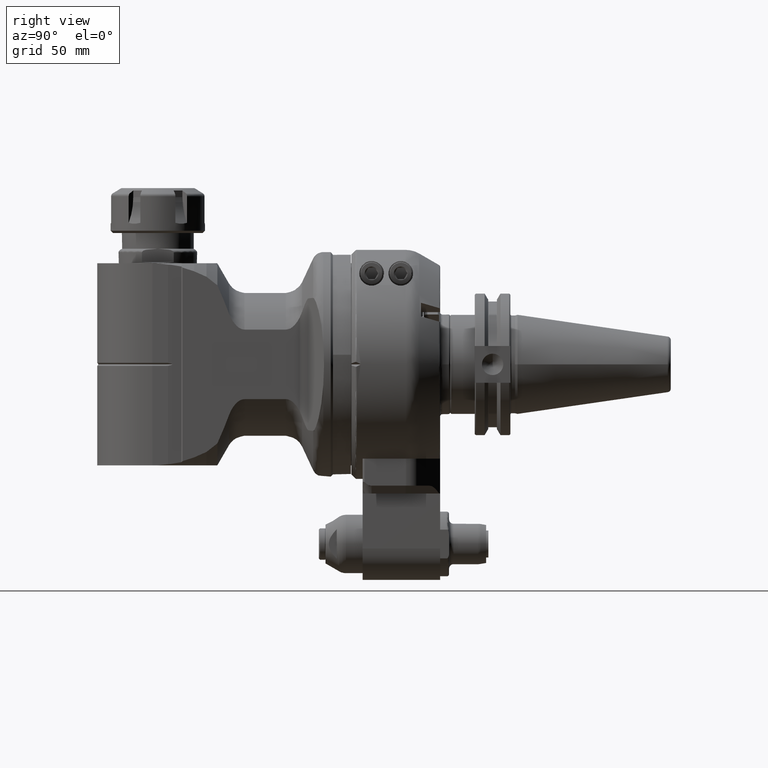
[diagram: clean part render]
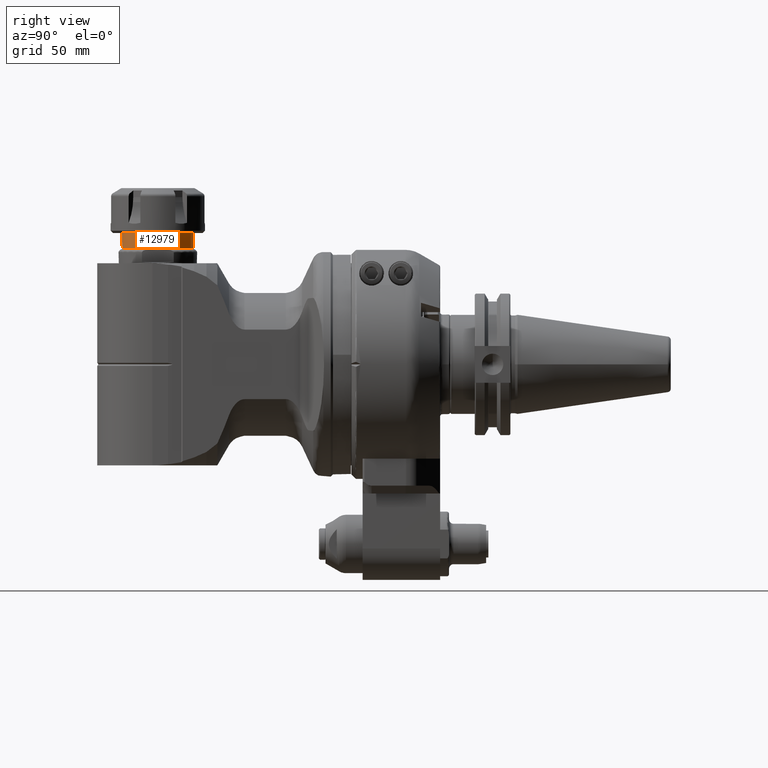
[diagram: same view with one face highlighted and labeled with its STEP entity id]
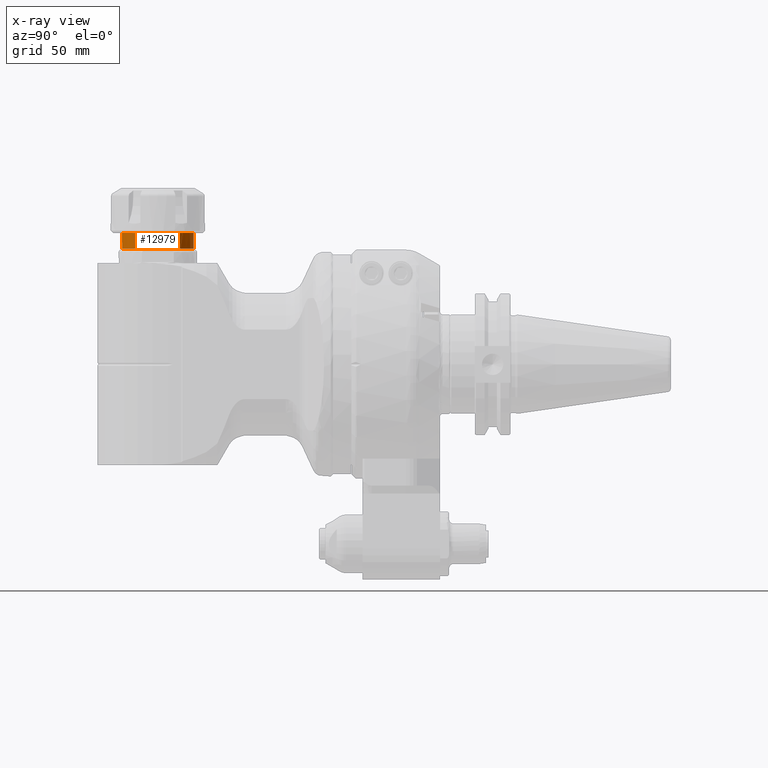
[diagram: x-ray of the same camera — body ghosted, the highlighted face saturated]
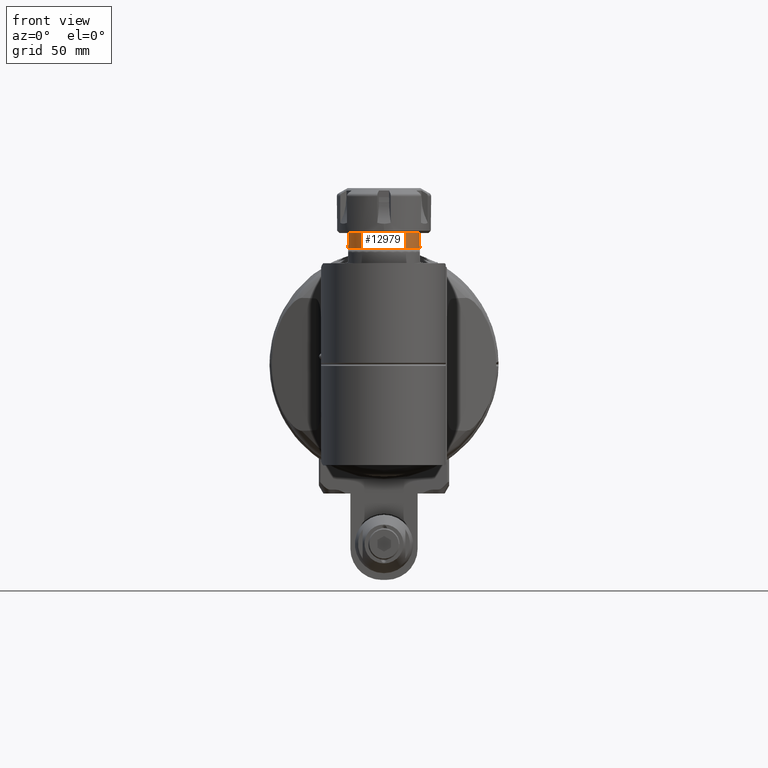
[diagram: same view with one face highlighted and labeled with its STEP entity id]
A machine part, right view. The second image highlights one B-rep face of the part: STEP entity #12979.
The next image is the same camera in x-ray: the body ghosted, the highlighted face saturated — about 0% of this face is hidden behind the body in this view.
A second angle (front view) of the same face is appended — the face is thin or edge-on in the first view.
In plain terms, the highlighted cylindrical surface (bore or boss wall) has radius 16 mm, axis along (-0, 0, -1).
Its self-contained STEP definition (entity closure, byte-faithful):
#1152=CYLINDRICAL_SURFACE('',#14528,16.);
#1865=FACE_OUTER_BOUND('',#2774,.T.);
#2774=EDGE_LOOP('',(#11613,#11614,#11615,#11616,#11617,#11618));
#3566=CIRCLE('',#14520,16.);
#3567=CIRCLE('',#14521,16.);
#3569=CIRCLE('',#14527,16.);
#3570=CIRCLE('',#14529,16.);
#4330=LINE('',#53225,#5125);
#5125=VECTOR('',#18138,16.);
#6328=VERTEX_POINT('',#53157);
#6331=VERTEX_POINT('',#53193);
#6332=VERTEX_POINT('',#53195);
#6334=VERTEX_POINT('',#53224);
#8125=EDGE_CURVE('',#6328,#6331,#3566,.T.);
#8126=EDGE_CURVE('',#6331,#6332,#3567,.T.);
#8132=EDGE_CURVE('',#6332,#6328,#3569,.T.);
#8133=EDGE_CURVE('',#6331,#6334,#4330,.T.);
#8134=EDGE_CURVE('',#6334,#6334,#3570,.T.);
#11613=ORIENTED_EDGE('',*,*,#8125,.F.);
#11614=ORIENTED_EDGE('',*,*,#8132,.F.);
#11615=ORIENTED_EDGE('',*,*,#8126,.F.);
#11616=ORIENTED_EDGE('',*,*,#8133,.T.);
#11617=ORIENTED_EDGE('',*,*,#8134,.F.);
#11618=ORIENTED_EDGE('',*,*,#8133,.F.);
#12979=ADVANCED_FACE('',(#1865),#1152,.T.);
#14520=AXIS2_PLACEMENT_3D('',#53194,#18119,#18120);
#14521=AXIS2_PLACEMENT_3D('',#53196,#18121,#18122);
#14527=AXIS2_PLACEMENT_3D('',#53222,#18134,#18135);
#14528=AXIS2_PLACEMENT_3D('',#53223,#18136,#18137);
#14529=AXIS2_PLACEMENT_3D('',#53226,#18139,#18140);
#18119=DIRECTION('center_axis',(0.,1.,0.));
#18120=DIRECTION('ref_axis',(-1.,0.,0.));
#18121=DIRECTION('center_axis',(0.,1.,0.));
#18122=DIRECTION('ref_axis',(-1.,0.,0.));
#18134=DIRECTION('center_axis',(0.,1.,0.));
#18135=DIRECTION('ref_axis',(1.,0.,0.));
#18136=DIRECTION('center_axis',(0.,1.,0.));
#18137=DIRECTION('ref_axis',(1.,0.,0.));
#18138=DIRECTION('',(0.,-1.,0.));
#18139=DIRECTION('center_axis',(0.,-1.,0.));
#18140=DIRECTION('ref_axis',(0.,0.,1.));
#53157=CARTESIAN_POINT('',(90.,-51.50000028753,-16.));
#53193=CARTESIAN_POINT('',(74.,-51.50000028753,1.95943487863577E-15));
#53194=CARTESIAN_POINT('Origin',(90.,-51.50000028753,0.));
#53195=CARTESIAN_POINT('',(90.,-51.50000028753,16.));
#53196=CARTESIAN_POINT('Origin',(90.,-51.50000028753,0.));
#53222=CARTESIAN_POINT('Origin',(90.,-51.50000028753,0.));
#53223=CARTESIAN_POINT('Origin',(90.,-65.71442900196,0.));
#53224=CARTESIAN_POINT('',(74.,-58.50000042753,1.95943487863577E-15));
#53225=CARTESIAN_POINT('',(74.,-65.71442900196,1.95943487863577E-15));
#53226=CARTESIAN_POINT('Origin',(90.,-58.50000042753,0.));